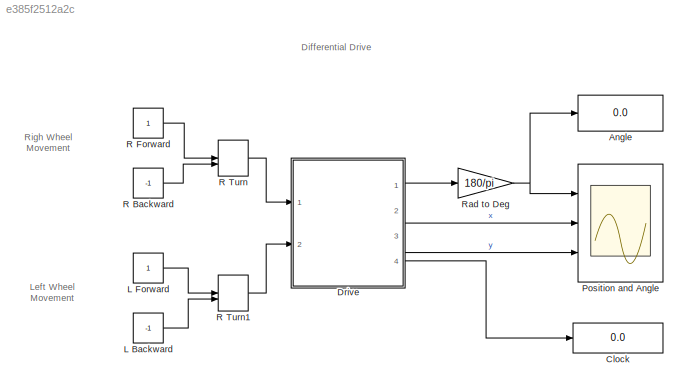
MODEL slx_e385f2512a2c
KIND model
CONFIG AbsTol = auto
CONFIG EnableMultiTasking = off
CONFIG FixedStep = 0.7
CONFIG MaxStep = auto
CONFIG MinStep = auto
CONFIG RelTol = 1e-3
CONFIG SampleTimeConstraint = Unconstrained
CONFIG Solver = FixedStepAuto
CONFIG SolverName = FixedStepAuto
CONFIG StartTime = 0.0
CONFIG StopTime = inf
BLOCK [Display] Angle
  AttributesFormatString = Degrees
  Decimation = 1
  Ports = [1]
BLOCK [Display] Clock
  Decimation = 1
  Ports = [1]
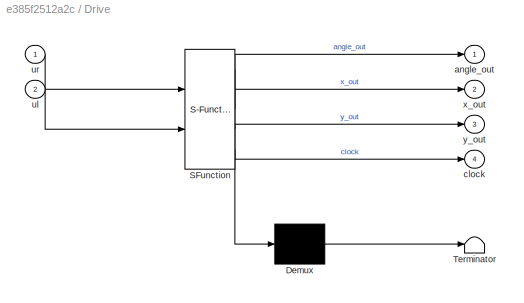
BLOCK [SubSystem] Drive
  ErrorFcn = Stateflow.Translate.translate
  PermitHierarchicalResolution = ExplicitOnly
  Ports = [2, 4]
  RequestExecContextInheritance = off
  SFBlockType = Chart
  TreatAsAtomicUnit = on
BLOCK [Demux] Drive/ Demux 
  Outputs = 1
  Ports = [1, 1]
BLOCK [S-Function] Drive/ SFunction 
  EnableBusSupport = on
  FunctionName = sf_sfun
  PortCounts = [2 5]
  Ports = [2, 5]
  SFcnIsStateOwnerBlock = off
  SFunctionDeploymentMode = off
  Tag = Stateflow S-Function differential_drive 3
BLOCK [Terminator] Drive/ Terminator 
BLOCK [Outport] Drive/angle_out
  IconDisplay = Port number
BLOCK [Outport] Drive/clock
  IconDisplay = Port number
  Port = 4
BLOCK [Inport] Drive/ul
  IconDisplay = Port number
  Port = 2
BLOCK [Inport] Drive/ur
  IconDisplay = Port number
BLOCK [Outport] Drive/x_out
  IconDisplay = Port number
  Port = 2
BLOCK [Outport] Drive/y_out
  IconDisplay = Port number
  Port = 3
BLOCK [Constant] L Backward
  Value = -1
BLOCK [Constant] L Forward
BLOCK [Scope] Position and Angle
  Floating = off
  NumInputPorts = 3
  Ports = [3]
  ScopeSpecificationString = Simulink.scopes.TimeScopeBlockCfg('CurrentConfiguration', extmgr.ConfigurationSet(extmgr.Configuration('Core','General UI',true),extmgr.Configuration('Core','Source UI',true),extmgr.Configuration('Sources','WiredSimulink',true),extmgr.Configuration('Visuals','Time Domain',true,'SerializedDisplays',{struct('MinYLimReal','-343.68798','MaxYLimReal','98.5915','YLabelReal','','MinYLimMag',' 0.00000','M...<+1453ch>
BLOCK [Constant] R Backward
  Value = -1
BLOCK [Constant] R Forward
BLOCK [ManualSwitch] R Turn
BLOCK [ManualSwitch] R Turn1
BLOCK [Gain] Rad to Deg
  Gain = 180/pi
  OutDataTypeStr = Inherit: Inherit via internal rule
  ParamDataTypeStr = Inherit: Inherit via internal rule
  SaturateOnIntegerOverflow = off
ANNOTATION (root): Left Wheel Movement
ANNOTATION (root): Differential Drive
ANNOTATION (root): Righ Wheel Movement
LINE Drive:1 -> Rad to Deg:1
LINE Drive:2 -> Position and Angle:2
LINE Drive:3 -> Position and Angle:3
LINE Drive:4 -> Clock:1
LINE L Backward:1 -> R Turn1:2
LINE L Forward:1 -> R Turn1:1
LINE R Backward:1 -> R Turn:2
LINE R Forward:1 -> R Turn:1
LINE R Turn1:1 -> Drive:2
LINE R Turn:1 -> Drive:1
NET Rad to Deg:1 -> Angle:1, Position and Angle:1
note: NET lines group one-source signal fan-out (src -> all destinations, sorted); 1:1 wires keep LINE
CHART Drive states=1 transitions=1
  STATE_LABEL 'GoForward\nen:\nclock = 0;\ndu:\nx_dot = (r / 2) * (ul + ur) * cos(angle);\ny_dot = (r / 2) * (ul + ur) * sin(angle);\nangle_dot = (r / L) * (ur - ul);\nangle_out = angle;\nx_out = x;\ny_out = y;\nclock_dot = 1;\n'
